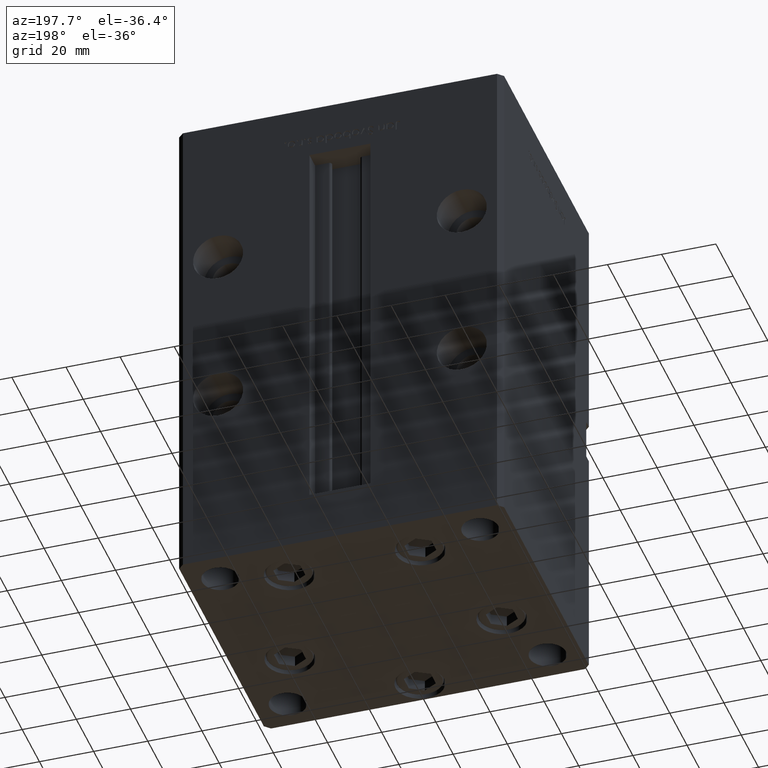
[diagram: clean part render]
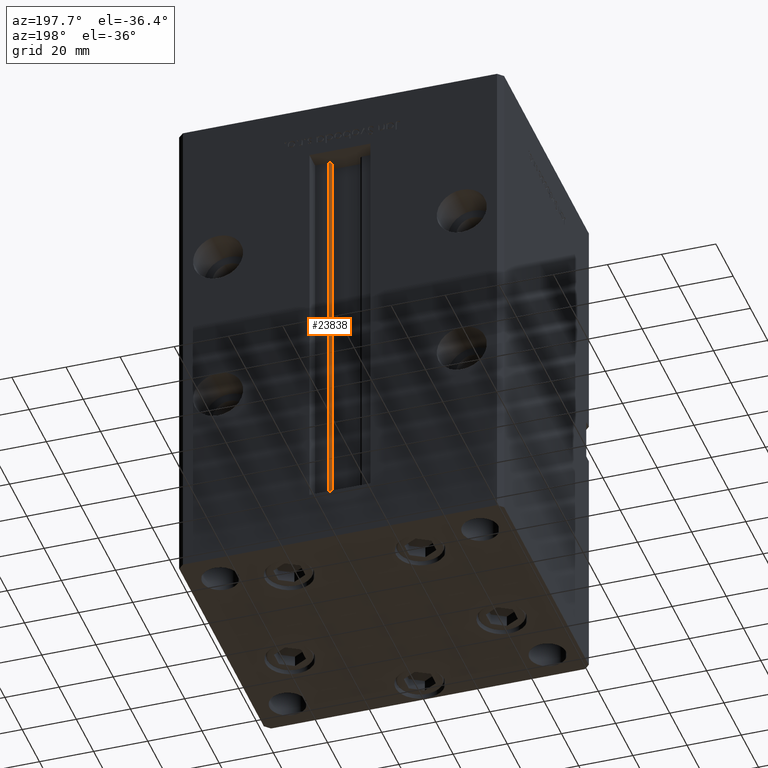
[diagram: same view with one face highlighted and labeled with its STEP entity id]
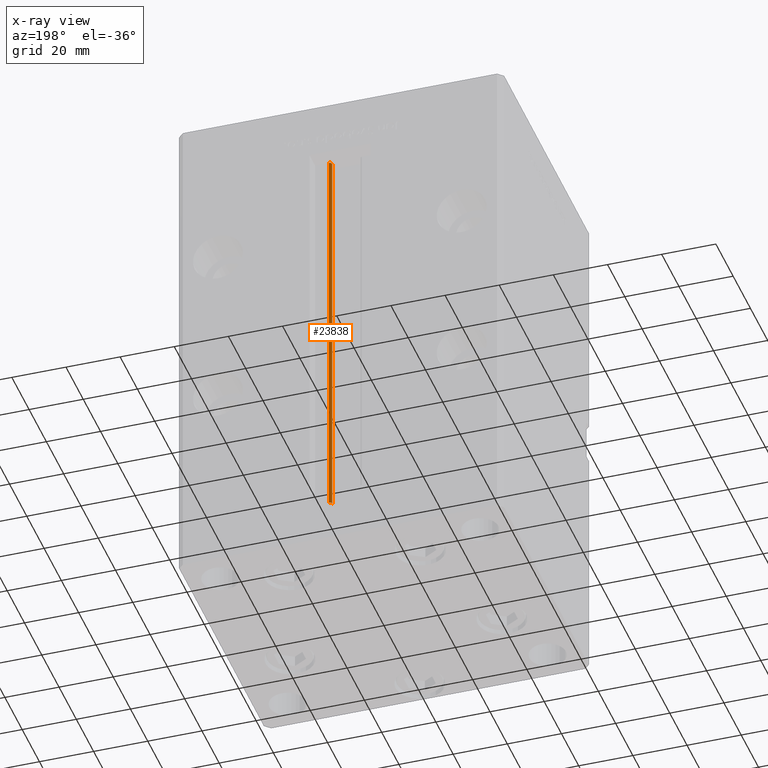
[diagram: x-ray of the same camera — body ghosted, the highlighted face saturated]
A machine part, auxiliary view. The second image highlights one B-rep face of the part: STEP entity #23838.
The next image is the same camera in x-ray: the body ghosted, the highlighted face saturated — about 0% of this face is hidden behind the body in this view.
In plain terms, the highlighted cylindrical surface (edge-blend (fillet) strip) has radius 0.9333 mm, axis along (0, 0, 1).
Its self-contained STEP definition (entity closure, byte-faithful):
#2146 = CARTESIAN_POINT ( 'NONE',  ( 6.183333333333997928, 43.56666666666600207, 0.000000000000000000 ) ) ;
#3599 = EDGE_CURVE ( 'NONE', #13436, #6563, #8784, .T. ) ;
#3753 = EDGE_LOOP ( 'NONE', ( #7087, #24925, #52487, #5209 ) ) ;
#5209 = ORIENTED_EDGE ( 'NONE', *, *, #48588, .T. ) ;
#6563 = VERTEX_POINT ( 'NONE', #29318 ) ;
#7087 = ORIENTED_EDGE ( 'NONE', *, *, #35952, .F. ) ;
#7135 = CYLINDRICAL_SURFACE ( 'NONE', #24508, 0.9333333333340008142 ) ;
#7697 = CIRCLE ( 'NONE', #24850, 0.9333333333340008142 ) ;
#8245 = DIRECTION ( 'NONE',  ( -0.000000000000000000, -0.000000000000000000, 1.000000000000000000 ) ) ;
#8784 = LINE ( 'NONE', #20076, #29877 ) ;
#8794 = DIRECTION ( 'NONE',  ( -0.000000000000000000, -0.000000000000000000, 1.000000000000000000 ) ) ;
#10289 = CARTESIAN_POINT ( 'NONE',  ( 5.375042956467945388, 43.09999999999899956, 0.000000000000000000 ) ) ;
#10392 = EDGE_CURVE ( 'NONE', #13436, #13568, #7697, .T. ) ;
#13436 = VERTEX_POINT ( 'NONE', #10289 ) ;
#13568 = VERTEX_POINT ( 'NONE', #17237 ) ;
#14406 = FACE_OUTER_BOUND ( 'NONE', #3753, .T. ) ;
#14536 = VERTEX_POINT ( 'NONE', #34078 ) ;
#17209 = VECTOR ( 'NONE', #8794, 1000.000000000000000 ) ;
#17237 = CARTESIAN_POINT ( 'NONE',  ( 6.183333333333997928, 44.50000000000000711, 0.000000000000000000 ) ) ;
#20076 = CARTESIAN_POINT ( 'NONE',  ( 5.375042956467945388, 43.09999999999899956, 0.000000000000000000 ) ) ;
#21401 = CARTESIAN_POINT ( 'NONE',  ( 6.183333333333997928, 44.50000000000000711, 0.000000000000000000 ) ) ;
#23838 = ADVANCED_FACE ( 'NONE', ( #14406 ), #7135, .T. ) ;
#24508 = AXIS2_PLACEMENT_3D ( 'NONE', #31539, #43083, #42825 ) ;
#24850 = AXIS2_PLACEMENT_3D ( 'NONE', #2146, #51733, #42634 ) ;
#24925 = ORIENTED_EDGE ( 'NONE', *, *, #10392, .F. ) ;
#25151 = LINE ( 'NONE', #21401, #17209 ) ;
#25502 = AXIS2_PLACEMENT_3D ( 'NONE', #35946, #31923, #35141 ) ;
#29318 = CARTESIAN_POINT ( 'NONE',  ( 5.375042956467942723, 43.09999999999899956, 148.5000000000000000 ) ) ;
#29877 = VECTOR ( 'NONE', #8245, 1000.000000000000000 ) ;
#31539 = CARTESIAN_POINT ( 'NONE',  ( 6.183333333333997928, 43.56666666666600207, 0.000000000000000000 ) ) ;
#31923 = DIRECTION ( 'NONE',  ( 0.000000000000000000, 0.000000000000000000, -1.000000000000000000 ) ) ;
#34078 = CARTESIAN_POINT ( 'NONE',  ( 6.183333333333997928, 44.50000000000000711, 148.5000000000000000 ) ) ;
#35141 = DIRECTION ( 'NONE',  ( 1.000000000000000000, 0.000000000000000000, 0.000000000000000000 ) ) ;
#35946 = CARTESIAN_POINT ( 'NONE',  ( 6.183333333333997928, 43.56666666666600207, 148.5000000000000000 ) ) ;
#35952 = EDGE_CURVE ( 'NONE', #13568, #14536, #25151, .T. ) ;
#41770 = CIRCLE ( 'NONE', #25502, 0.9333333333340008142 ) ;
#42634 = DIRECTION ( 'NONE',  ( 1.000000000000000000, 0.000000000000000000, 0.000000000000000000 ) ) ;
#42825 = DIRECTION ( 'NONE',  ( 1.000000000000000000, 0.000000000000000000, 0.000000000000000000 ) ) ;
#43083 = DIRECTION ( 'NONE',  ( -0.000000000000000000, -0.000000000000000000, 1.000000000000000000 ) ) ;
#48588 = EDGE_CURVE ( 'NONE', #6563, #14536, #41770, .T. ) ;
#51733 = DIRECTION ( 'NONE',  ( -0.000000000000000000, -0.000000000000000000, -1.000000000000000000 ) ) ;
#52487 = ORIENTED_EDGE ( 'NONE', *, *, #3599, .T. ) ;